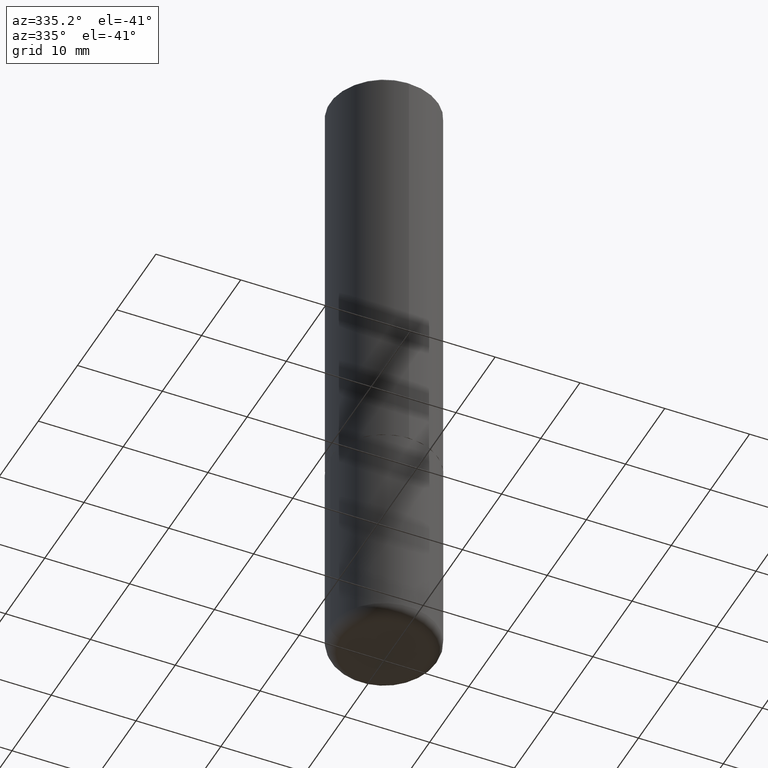
[diagram: clean part render]
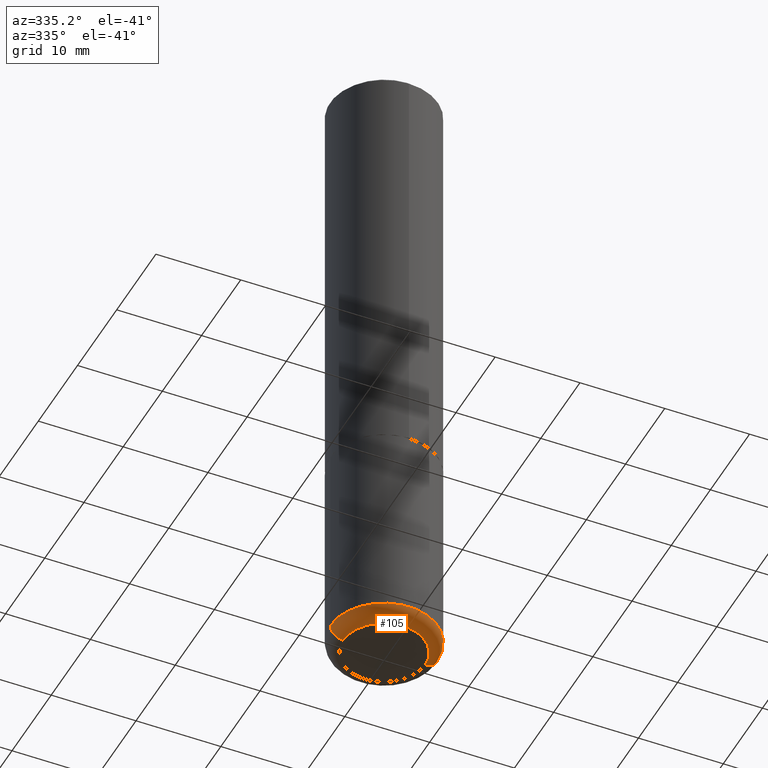
[diagram: same view with one face highlighted and labeled with its STEP entity id]
A machine part, auxiliary view. The second image highlights one B-rep face of the part: STEP entity #105.
In plain terms, the highlighted toroidal blend (fillet) surface has major radius 4.826 mm and minor (blend) radius 1.524 mm.
Its self-contained STEP definition (entity closure, byte-faithful):
#17 = EDGE_LOOP ( 'NONE', ( #332, #81, #48, #117 ) ) ;
#19 = CARTESIAN_POINT ( 'NONE',  ( -0.1899999999999999745, -8.806505557691924342E-15, -2.999999999999999556 ) ) ;
#36 = DIRECTION ( 'NONE',  ( 7.105427357601001859E-15, 1.000000000000000000, -3.491481338843145583E-15 ) ) ;
#48 = ORIENTED_EDGE ( 'NONE', *, *, #86, .T. ) ;
#63 = CARTESIAN_POINT ( 'NONE',  ( -0.1899999999999999745, -8.914923938254659640E-15, -2.940000000000000391 ) ) ;
#70 = DIRECTION ( 'NONE',  ( -1.000000000000000000, 7.105427357600997914E-15, 0.000000000000000000 ) ) ;
#73 = EDGE_CURVE ( 'NONE', #132, #146, #163, .T. ) ;
#74 = DIRECTION ( 'NONE',  ( 1.000000000000000000, -6.982962677686275388E-15, 0.000000000000000000 ) ) ;
#81 = ORIENTED_EDGE ( 'NONE', *, *, #269, .T. ) ;
#82 = FACE_OUTER_BOUND ( 'NONE', #17, .T. ) ;
#86 = EDGE_CURVE ( 'NONE', #90, #146, #403, .T. ) ;
#90 = VERTEX_POINT ( 'NONE', #166 ) ;
#99 = CARTESIAN_POINT ( 'NONE',  ( 7.189678290184301639E-29, -1.026495513619884961E-14, -2.940000000000000391 ) ) ;
#100 = DIRECTION ( 'NONE',  ( -2.445468806185136597E-29, 3.491481338843145583E-15, 1.000000000000000000 ) ) ;
#102 = AXIS2_PLACEMENT_3D ( 'NONE', #417, #147, #153 ) ;
#105 = ADVANCED_FACE ( 'NONE', ( #82 ), #266, .T. ) ;
#109 = AXIS2_PLACEMENT_3D ( 'NONE', #63, #36, #70 ) ;
#114 = VERTEX_POINT ( 'NONE', #19 ) ;
#117 = ORIENTED_EDGE ( 'NONE', *, *, #73, .F. ) ;
#132 = VERTEX_POINT ( 'NONE', #241 ) ;
#134 = DIRECTION ( 'NONE',  ( 1.000000000000000000, -6.982962677686262766E-15, 0.000000000000000000 ) ) ;
#146 = VERTEX_POINT ( 'NONE', #232 ) ;
#147 = DIRECTION ( 'NONE',  ( -2.445468806185136597E-29, 3.491481338843145583E-15, 1.000000000000000000 ) ) ;
#153 = DIRECTION ( 'NONE',  ( 1.000000000000000000, -6.982962677686273021E-15, 0.000000000000000000 ) ) ;
#158 = CIRCLE ( 'NONE', #102, 0.1899999999999999745 ) ;
#163 = CIRCLE ( 'NONE', #347, 0.2500000000000000000 ) ;
#166 = CARTESIAN_POINT ( 'NONE',  ( 0.1899999999999999745, -1.180120692528982640E-14, -2.999999999999999556 ) ) ;
#179 = DIRECTION ( 'NONE',  ( 1.000000000000000000, -6.982962677686265133E-15, 4.883557194083112340E-29 ) ) ;
#224 = CARTESIAN_POINT ( 'NONE',  ( 0.1899999999999999745, -1.159171804495923808E-14, -2.940000000000000391 ) ) ;
#228 = DIRECTION ( 'NONE',  ( -6.982962677686266711E-15, -1.000000000000000000, 3.491481338843145583E-15 ) ) ;
#232 = CARTESIAN_POINT ( 'NONE',  ( 0.2499999999999998335, -1.201069580562041471E-14, -2.940000000000000391 ) ) ;
#241 = CARTESIAN_POINT ( 'NONE',  ( -0.2499999999999998335, -8.488598296798600727E-15, -2.940000000000000391 ) ) ;
#266 = TOROIDAL_SURFACE ( 'NONE', #370, 0.1899999999999999745, 0.05999999999999968553 ) ;
#269 = EDGE_CURVE ( 'NONE', #114, #90, #158, .T. ) ;
#271 = CARTESIAN_POINT ( 'NONE',  ( 7.189678290184301639E-29, -1.026495513619884961E-14, -2.940000000000000391 ) ) ;
#330 = CIRCLE ( 'NONE', #109, 0.05999999999999966471 ) ;
#332 = ORIENTED_EDGE ( 'NONE', *, *, #418, .F. ) ;
#338 = AXIS2_PLACEMENT_3D ( 'NONE', #224, #228, #74 ) ;
#347 = AXIS2_PLACEMENT_3D ( 'NONE', #99, #100, #134 ) ;
#370 = AXIS2_PLACEMENT_3D ( 'NONE', #271, #400, #179 ) ;
#400 = DIRECTION ( 'NONE',  ( -2.445468806185136597E-29, 3.491481338843145583E-15, 1.000000000000000000 ) ) ;
#403 = CIRCLE ( 'NONE', #338, 0.05999999999999966471 ) ;
#417 = CARTESIAN_POINT ( 'NONE',  ( 7.336406418555408669E-29, -1.047444401652943478E-14, -2.999999999999999556 ) ) ;
#418 = EDGE_CURVE ( 'NONE', #114, #132, #330, .T. ) ;